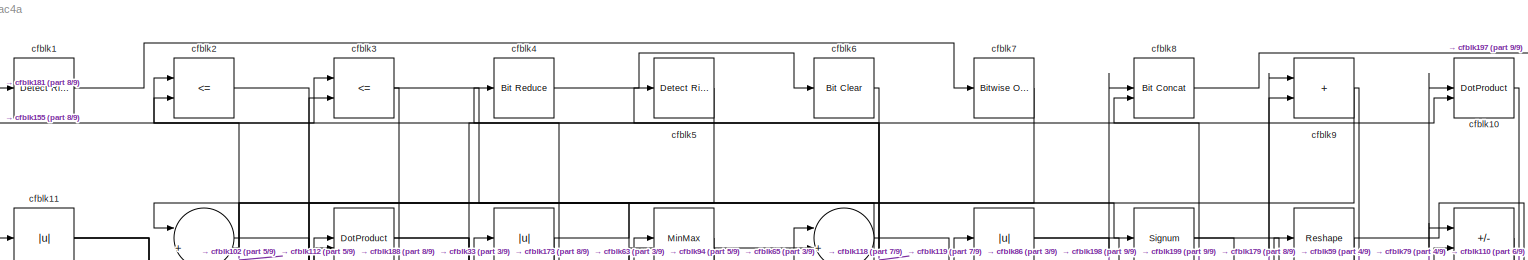
[diagram: root canvas - part 1/9, full width, top band]
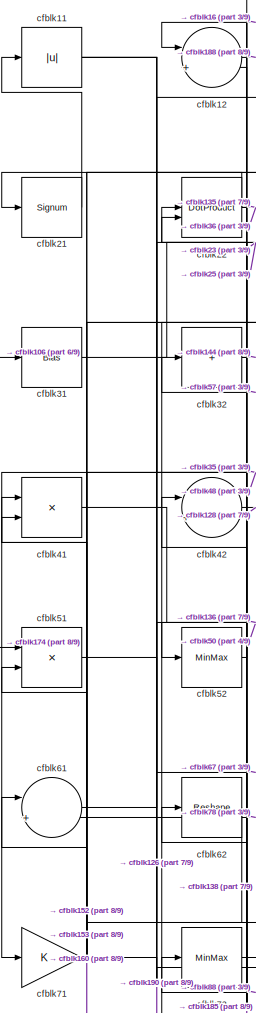
[diagram: root canvas - part 2/9, top left region]
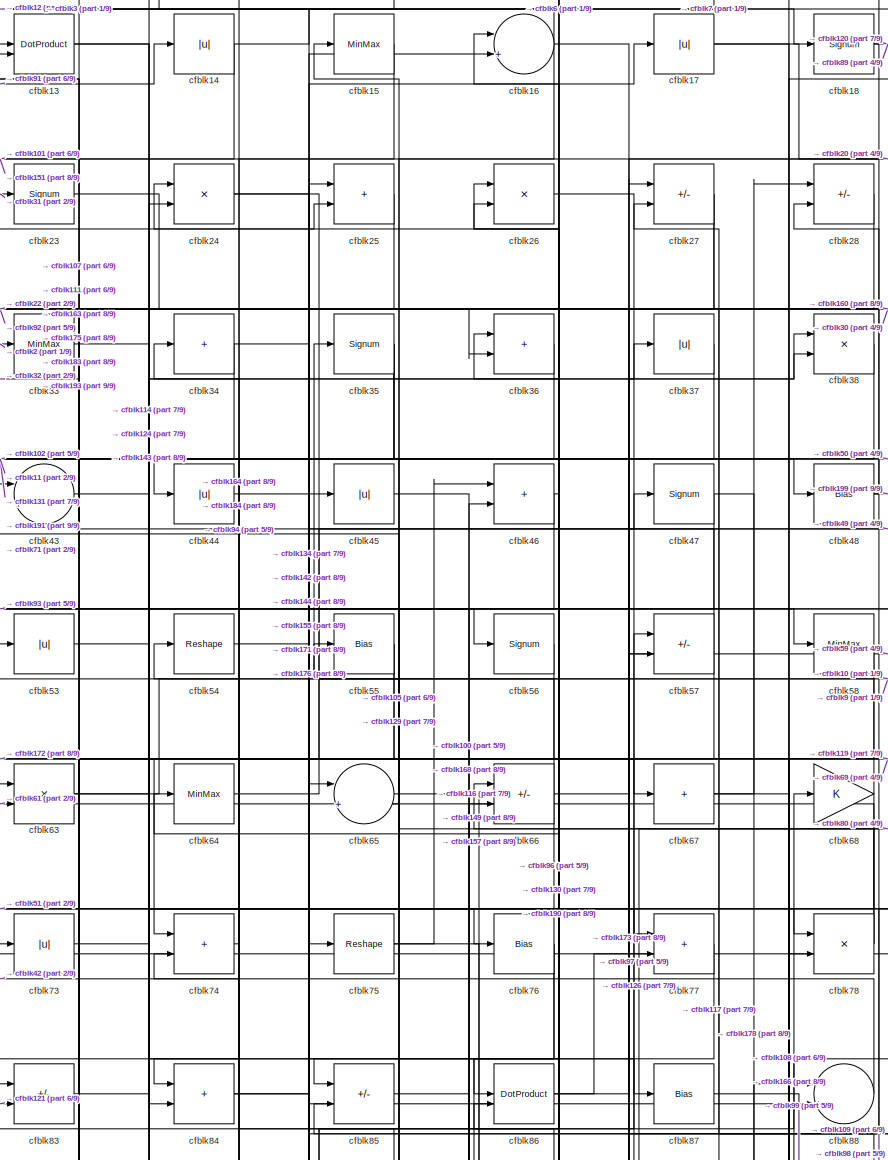
[diagram: root canvas - part 3/9, top center region]
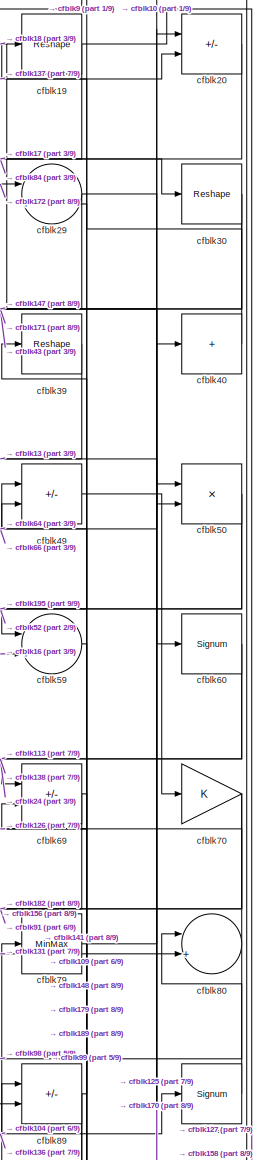
[diagram: root canvas - part 4/9, top right region]
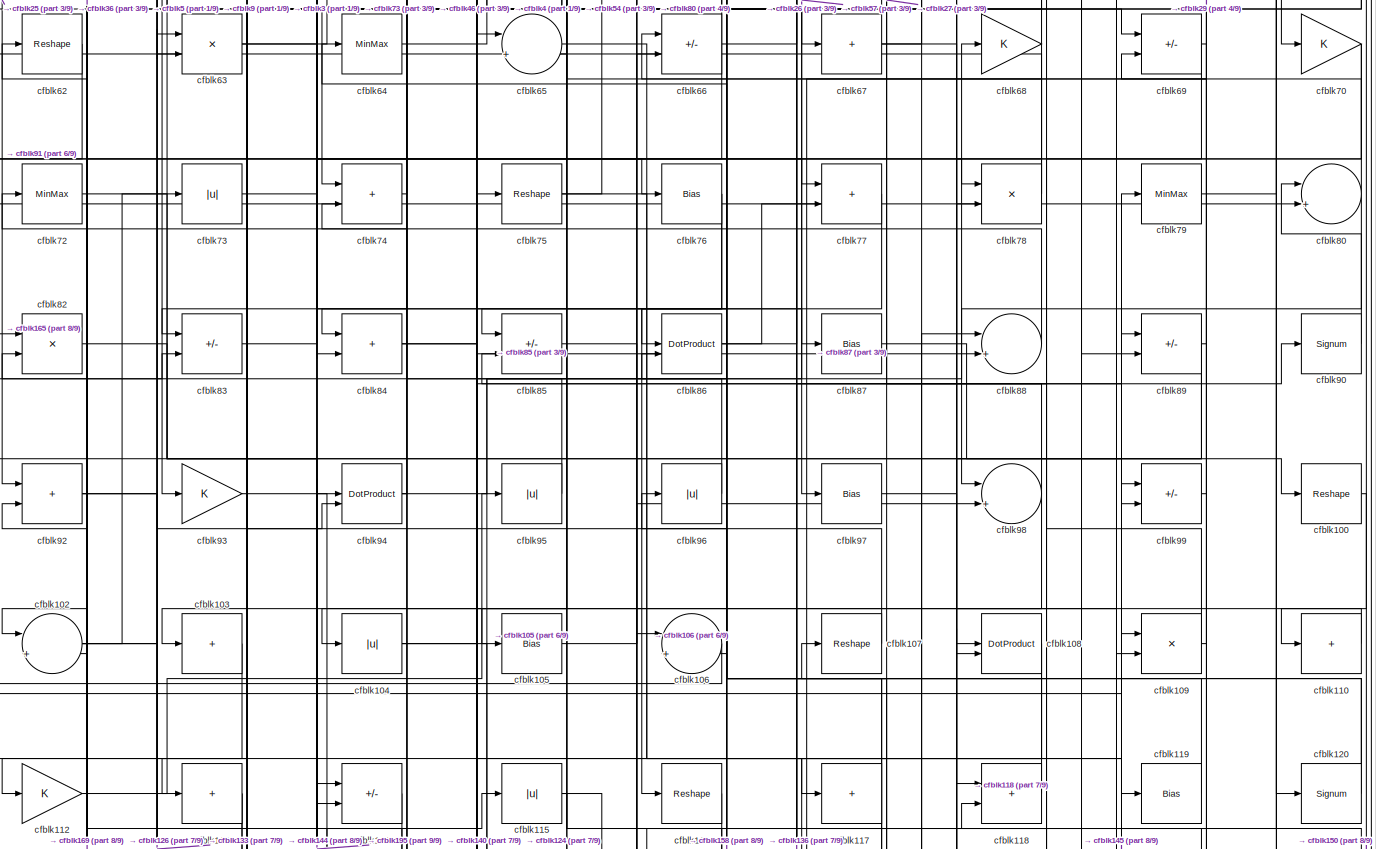
[diagram: root canvas - part 5/9, full width, middle band]
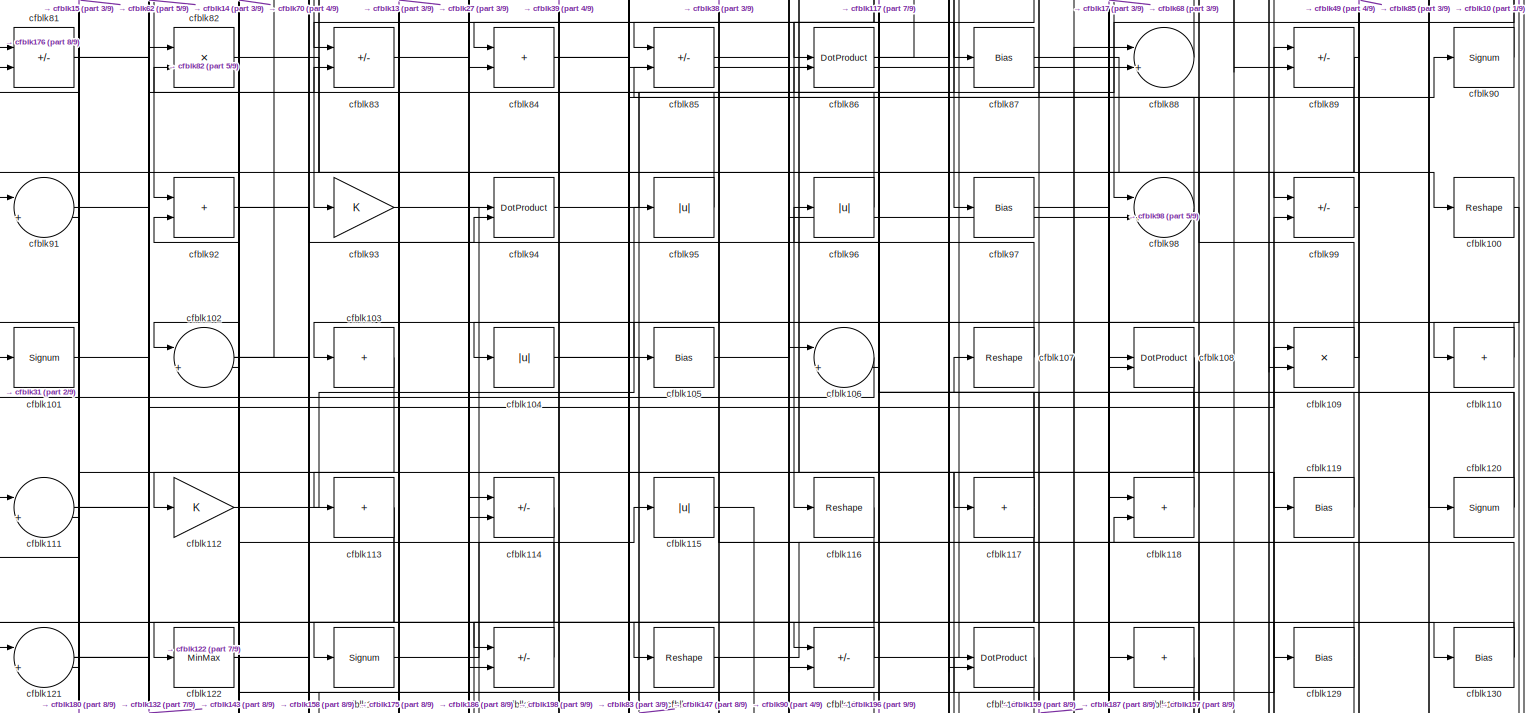
[diagram: root canvas - part 6/9, full width, middle band]
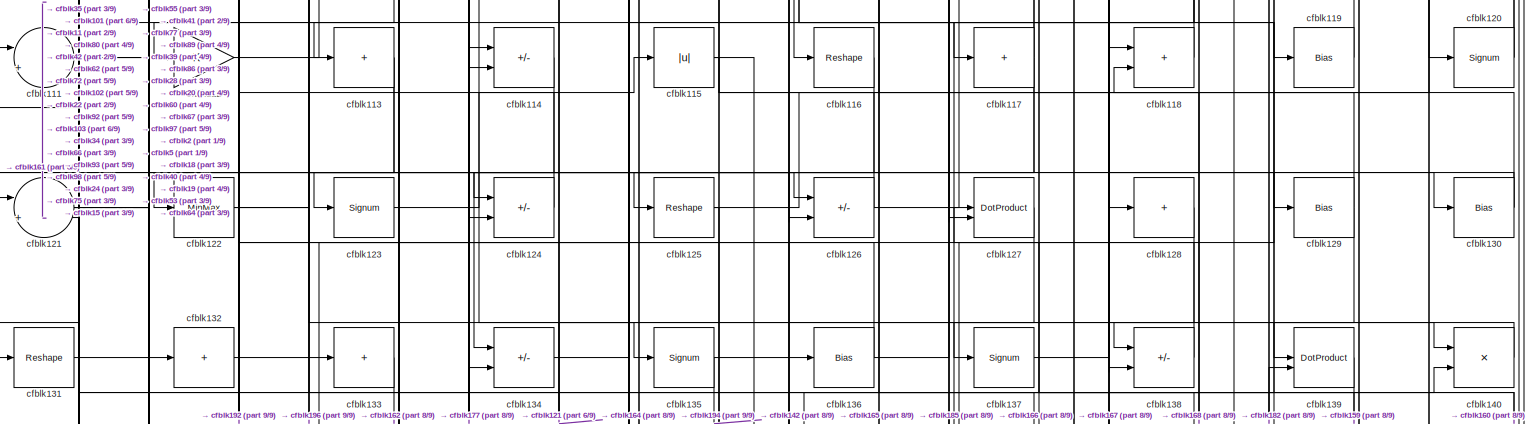
[diagram: root canvas - part 7/9, full width, middle band]
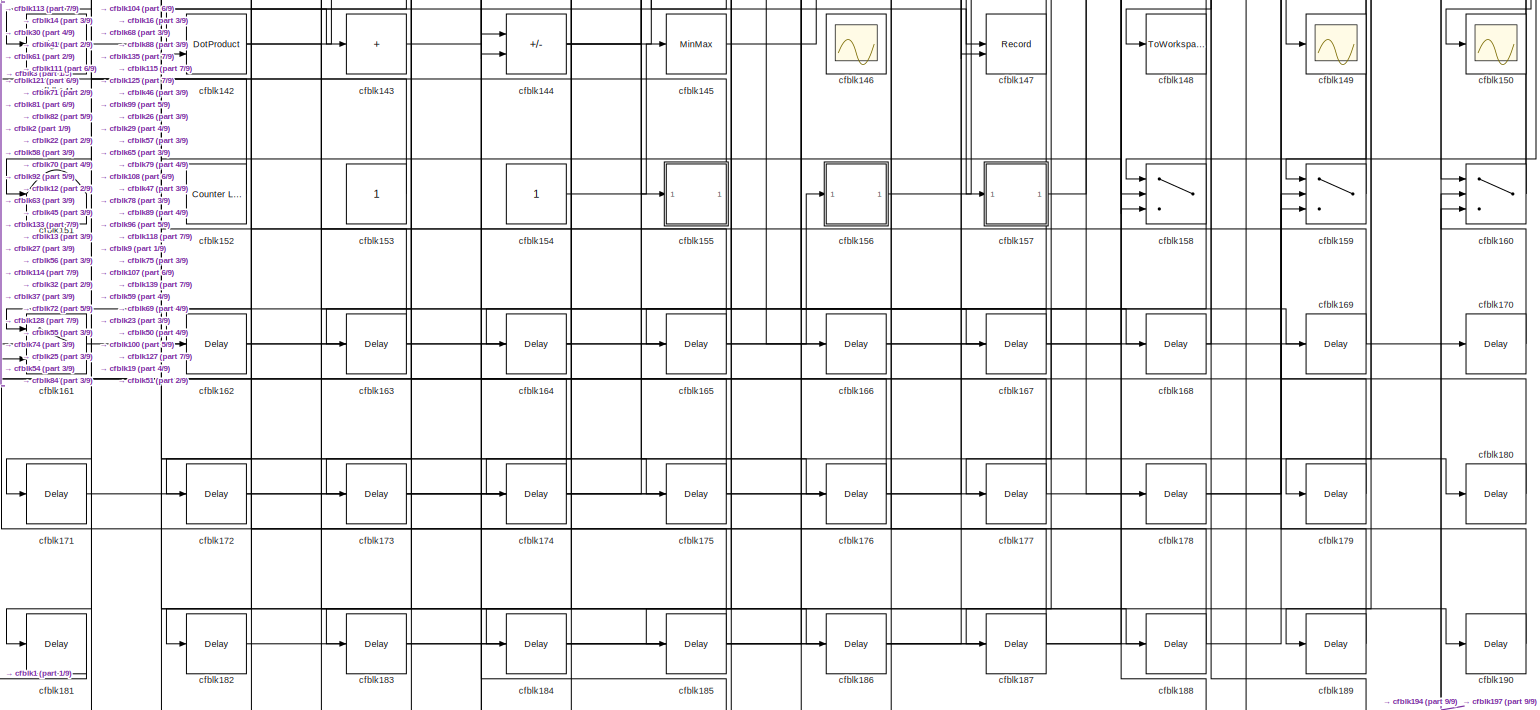
[diagram: root canvas - part 8/9, full width, bottom band]
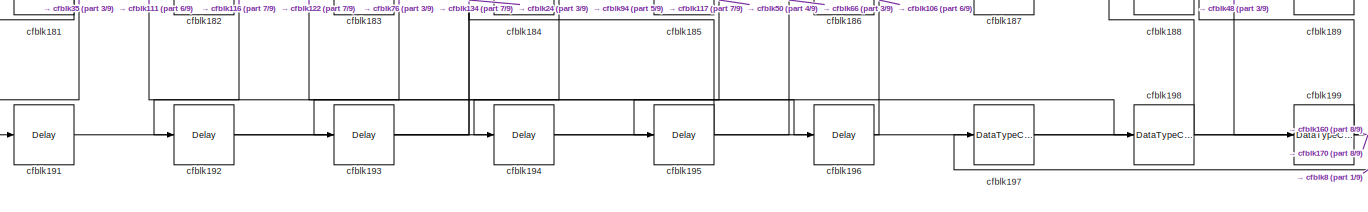
[diagram: root canvas - part 9/9, full width, bottom band]
MODEL slx_ca56946bac4a
KIND model
CONFIG AbsTol = auto
CONFIG EnableMultiTasking = off
CONFIG FixedStep = auto
CONFIG MaxStep = auto
CONFIG MinStep = auto
CONFIG RelTol = 1e-3
CONFIG SampleTimeConstraint = Unconstrained
CONFIG SolverName = VariableStepAuto
CONFIG StartTime = 0.0
CONFIG StopTime = 10.0
BLOCK [Reference] cfblk1  REF=hdlsllib/Logic and Bit
Operations/Detect Rise
Positive
  SourceBlock = hdlsllib/Logic and Bit\nOperations/Detect Rise\nPositive
  SourceType = Detect Rise Positive
BLOCK [DotProduct] cfblk10
  OutDataTypeStr = Inherit: Inherit via internal rule
BLOCK [Reshape] cfblk100
BLOCK [Signum] cfblk101
BLOCK [Sum] cfblk102
  Inputs = |++
BLOCK [Sum] cfblk103
  IconShape = rectangular
  Inputs = +
BLOCK [Abs] cfblk104
  SaturateOnIntegerOverflow = off
BLOCK [Bias] cfblk105
  Bias = 0.0
  SaturateOnIntegerOverflow = off
BLOCK [Sum] cfblk106
  Inputs = |++
BLOCK [Reshape] cfblk107
BLOCK [DotProduct] cfblk108
  OutDataTypeStr = Inherit: Inherit via internal rule
BLOCK [Product] cfblk109
  Inputs = */
  RndMeth = Zero
  SaturateOnIntegerOverflow = on
BLOCK [Abs] cfblk11
  SaturateOnIntegerOverflow = off
BLOCK [Sum] cfblk110
  IconShape = rectangular
  Inputs = +
BLOCK [Sum] cfblk111
  Inputs = |++
BLOCK [Gain] cfblk112
BLOCK [Sum] cfblk113
  IconShape = rectangular
  Inputs = +
BLOCK [Sum] cfblk114
  IconShape = rectangular
  Inputs = +-
BLOCK [Abs] cfblk115
  SaturateOnIntegerOverflow = off
BLOCK [Reshape] cfblk116
BLOCK [Sum] cfblk117
  IconShape = rectangular
  Inputs = +
BLOCK [Sum] cfblk118
  IconShape = rectangular
BLOCK [Bias] cfblk119
  Bias = 0.0
  SaturateOnIntegerOverflow = off
BLOCK [Sum] cfblk12
  Inputs = |++
BLOCK [Signum] cfblk120
BLOCK [Sum] cfblk121
  Inputs = |++
BLOCK [MinMax] cfblk122
BLOCK [Signum] cfblk123
BLOCK [Sum] cfblk124
  IconShape = rectangular
  Inputs = +-
BLOCK [Reshape] cfblk125
BLOCK [Sum] cfblk126
  IconShape = rectangular
  Inputs = +-
BLOCK [DotProduct] cfblk127
  OutDataTypeStr = Inherit: Inherit via internal rule
BLOCK [Sum] cfblk128
  IconShape = rectangular
  Inputs = +
BLOCK [Bias] cfblk129
  Bias = 0.0
  SaturateOnIntegerOverflow = off
BLOCK [DotProduct] cfblk13
  OutDataTypeStr = Inherit: Inherit via internal rule
BLOCK [Bias] cfblk130
  Bias = 0.0
  SaturateOnIntegerOverflow = off
BLOCK [Reshape] cfblk131
BLOCK [Sum] cfblk132
  IconShape = rectangular
  Inputs = +
BLOCK [Sum] cfblk133
  IconShape = rectangular
  Inputs = +
BLOCK [Sum] cfblk134
  IconShape = rectangular
  Inputs = +-
BLOCK [Signum] cfblk135
BLOCK [Bias] cfblk136
  Bias = 0.0
  SaturateOnIntegerOverflow = off
BLOCK [Signum] cfblk137
BLOCK [Sum] cfblk138
  IconShape = rectangular
  Inputs = +-
BLOCK [DotProduct] cfblk139
  OutDataTypeStr = Inherit: Inherit via internal rule
BLOCK [Abs] cfblk14
  SaturateOnIntegerOverflow = off
BLOCK [Product] cfblk140
  Inputs = */
  RndMeth = Zero
  SaturateOnIntegerOverflow = on
BLOCK [Signum] cfblk141
BLOCK [DotProduct] cfblk142
  OutDataTypeStr = Inherit: Inherit via internal rule
BLOCK [Sum] cfblk143
  IconShape = rectangular
  Inputs = +
BLOCK [Sum] cfblk144
  IconShape = rectangular
  Inputs = +-
BLOCK [MinMax] cfblk145
BLOCK [Scope] cfblk146
  Floating = on
  NumInputPorts = 1
  ScopeSpecificationString = Simulink.scopes.TimeScopeBlockCfg('CurrentConfiguration', extmgr.ConfigurationSet(extmgr.Configuration('Core','General UI',true,'FigureColor',[0.156862745098039 0.156862745098039 0.156862745098039]),extmgr.Configuration('Core','Source UI',true),extmgr.Configuration('Sources','WiredSimulink',true,'DataLoggingVariableName','ScopeData1','DataLoggingSaveFormat','StructureWithTime','DataLoggingLimitDat...<+2713ch>
BLOCK [Record] cfblk147
  CompatibilityTag = XY
  FileSettingsInternal = {"entries":[{"content":{"excelSettings":{"content":{},"type":"Streamout.ExcelSettings"}},"type":"Streamout.FileSettingStorage","uuid":""}],"packageUris":["http:\/\/schema.mathworks.com\/mf0\/streamout_blocks\/R2020a"],"version":"1.0"}
  Layout = [1 1]
  SignalsInternal = {"entries":[{"content":{"signals":[{"content":{"blockPath":[],"dimensions":[1],"domain":"","lineColor":"#a2142f","plots":[1],"port":1,"signalID":2869,"signalName":"XY Graph:1"},"type":"RecordBlkView.Signal","uuid":""},{"content":{"blockPath":[],"dimensions":[1],"domain":"","lineColor":"#139fff","plots":[1],"port":2,"signalID":2872,"signalName":"XY Graph:2"},"type":"RecordBlkView.Signal","uuid":""}...<+146ch>
  VisualizationBindings = {"xyplotplugin":{"info":[{"series":[{"bindingParametersList":[{"parameter":"X-Axis","signalID":2869,"signalName":"XY Graph:1"},{"parameter":"Y-Axis","signalID":2872,"signalName":"XY Graph:2"}],"seriesID":21956}],"subplotID":1}]}}
  st = -1
BLOCK [ToWorkspace] cfblk148
  MaxDataPoints = inf
  SampleTime = -1
  SaveFormat = Timeseries
  VariableName = simout
BLOCK [Scope] cfblk149
  Floating = off
  NumInputPorts = 1
  ScopeSpecificationString = Simulink.scopes.TimeScopeBlockCfg('CurrentConfiguration', extmgr.ConfigurationSet(extmgr.Configuration('Core','General UI',true),extmgr.Configuration('Core','Source UI',true),extmgr.Configuration('Sources','WiredSimulink',true,'DataLoggingVariableName','ScopeData2','DataLoggingSaveFormat','Array','DataLoggingLimitDataPoints',true,'DataLoggingDecimation','1'),extmgr.Configuration('Visuals','Time Do...<+868ch>
BLOCK [MinMax] cfblk15
BLOCK [Scope] cfblk150
  Floating = off
  NumInputPorts = 1
  ScopeSpecificationString = Simulink.scopes.TimeScopeBlockCfg('CurrentConfiguration', extmgr.ConfigurationSet(extmgr.Configuration('Core','General UI',true),extmgr.Configuration('Core','Source UI',true),extmgr.Configuration('Sources','WiredSimulink',true,'DataLoggingVariableName','ScopeData2','DataLoggingSaveFormat','Array','DataLoggingLimitDataPoints',true,'DataLoggingDecimation','1'),extmgr.Configuration('Visuals','Time Do...<+868ch>
BLOCK [Terminator] cfblk151
BLOCK [Reference] cfblk152  REF=hdlsllib/Sources/Counter
Limited
  SourceBlock = hdlsllib/Sources/Counter\nLimited
  SourceType = Counter Limited
BLOCK [Constant] cfblk153
  SampleTime = -1
BLOCK [Constant] cfblk154
  SampleTime = -1
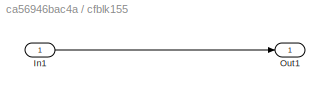
BLOCK [SubSystem] cfblk155
  LibrarySourceBlock = hdlsllib/Ports &\nSubsystems/Subsystem
BLOCK [Inport] cfblk155/In1
BLOCK [Outport] cfblk155/Out1
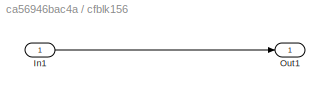
BLOCK [SubSystem] cfblk156
  LibrarySourceBlock = hdlsllib/Ports &\nSubsystems/Subsystem
BLOCK [Inport] cfblk156/In1
BLOCK [Outport] cfblk156/Out1
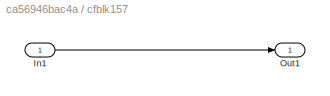
BLOCK [SubSystem] cfblk157
  LibrarySourceBlock = hdlsllib/Ports &\nSubsystems/Subsystem
BLOCK [Inport] cfblk157/In1
BLOCK [Outport] cfblk157/Out1
BLOCK [Switch] cfblk158
  InputSameDT = off
  SaturateOnIntegerOverflow = off
BLOCK [Switch] cfblk159
  InputSameDT = off
  SaturateOnIntegerOverflow = off
BLOCK [Sum] cfblk16
  Inputs = |++
BLOCK [Switch] cfblk160
  InputSameDT = off
  SaturateOnIntegerOverflow = off
BLOCK [Switch] cfblk161
  InputSameDT = off
  SaturateOnIntegerOverflow = off
BLOCK [Delay] cfblk162
  InputPortMap = u0
  SampleTime = 1
BLOCK [Delay] cfblk163
  InputPortMap = u0
  SampleTime = 1
BLOCK [Delay] cfblk164
  InputPortMap = u0
  SampleTime = 1
BLOCK [Delay] cfblk165
  InputPortMap = u0
  SampleTime = 1
BLOCK [Delay] cfblk166
  InputPortMap = u0
  SampleTime = 1
BLOCK [Delay] cfblk167
  InputPortMap = u0
  SampleTime = 1
BLOCK [Delay] cfblk168
  InputPortMap = u0
  SampleTime = 1
BLOCK [Delay] cfblk169
  InputPortMap = u0
  SampleTime = 1
BLOCK [Abs] cfblk17
  SaturateOnIntegerOverflow = off
BLOCK [Delay] cfblk170
  InputPortMap = u0
  SampleTime = 1
BLOCK [Delay] cfblk171
  InputPortMap = u0
  SampleTime = 1
BLOCK [Delay] cfblk172
  InputPortMap = u0
  SampleTime = 1
BLOCK [Delay] cfblk173
  InputPortMap = u0
  SampleTime = 1
BLOCK [Delay] cfblk174
  InputPortMap = u0
  SampleTime = 1
BLOCK [Delay] cfblk175
  InputPortMap = u0
  SampleTime = 1
BLOCK [Delay] cfblk176
  InputPortMap = u0
  SampleTime = 1
BLOCK [Delay] cfblk177
  InputPortMap = u0
  SampleTime = 1
BLOCK [Delay] cfblk178
  InputPortMap = u0
  SampleTime = 1
BLOCK [Delay] cfblk179
  InputPortMap = u0
  SampleTime = 1
BLOCK [Signum] cfblk18
BLOCK [Delay] cfblk180
  InputPortMap = u0
  SampleTime = 1
BLOCK [Delay] cfblk181
  InputPortMap = u0
  SampleTime = 1
BLOCK [Delay] cfblk182
  InputPortMap = u0
  SampleTime = 1
BLOCK [Delay] cfblk183
  InputPortMap = u0
  SampleTime = 1
BLOCK [Delay] cfblk184
  InputPortMap = u0
  SampleTime = 1
BLOCK [Delay] cfblk185
  InputPortMap = u0
  SampleTime = 1
BLOCK [Delay] cfblk186
  InputPortMap = u0
  SampleTime = 1
BLOCK [Delay] cfblk187
  InputPortMap = u0
  SampleTime = 1
BLOCK [Delay] cfblk188
  InputPortMap = u0
  SampleTime = 1
BLOCK [Delay] cfblk189
  InputPortMap = u0
  SampleTime = 1
BLOCK [Reshape] cfblk19
BLOCK [Delay] cfblk190
  InputPortMap = u0
  SampleTime = 1
BLOCK [Delay] cfblk191
  InputPortMap = u0
  SampleTime = 1
BLOCK [Delay] cfblk192
  InputPortMap = u0
  SampleTime = 1
BLOCK [Delay] cfblk193
  InputPortMap = u0
  SampleTime = 1
BLOCK [Delay] cfblk194
  InputPortMap = u0
  SampleTime = 1
BLOCK [Delay] cfblk195
  InputPortMap = u0
  SampleTime = 1
BLOCK [Delay] cfblk196
  InputPortMap = u0
  SampleTime = 1
BLOCK [DataTypeConversion] cfblk197
  OutDataTypeStr = uint8
  RndMeth = Floor
  SaturateOnIntegerOverflow = off
BLOCK [DataTypeConversion] cfblk198
  OutDataTypeStr = uint8
  RndMeth = Floor
  SaturateOnIntegerOverflow = off
BLOCK [DataTypeConversion] cfblk199
  OutDataTypeStr = uint8
  RndMeth = Floor
  SaturateOnIntegerOverflow = off
BLOCK [RelationalOperator] cfblk2
  InputSameDT = off
  Operator = <=
  OutDataTypeStr = boolean
BLOCK [Sum] cfblk20
  IconShape = rectangular
  Inputs = +-
BLOCK [Signum] cfblk21
BLOCK [DotProduct] cfblk22
  OutDataTypeStr = Inherit: Inherit via internal rule
BLOCK [Signum] cfblk23
BLOCK [Product] cfblk24
  Inputs = */
  RndMeth = Zero
  SaturateOnIntegerOverflow = on
BLOCK [Sum] cfblk25
  IconShape = rectangular
BLOCK [Product] cfblk26
  Inputs = */
  RndMeth = Zero
  SaturateOnIntegerOverflow = on
BLOCK [Sum] cfblk27
  IconShape = rectangular
  Inputs = +-
BLOCK [Sum] cfblk28
  IconShape = rectangular
  Inputs = +-
BLOCK [Sum] cfblk29
  Inputs = |++
BLOCK [RelationalOperator] cfblk3
  InputSameDT = off
  Operator = <=
  OutDataTypeStr = boolean
BLOCK [Reshape] cfblk30
BLOCK [Bias] cfblk31
  Bias = 0.0
  SaturateOnIntegerOverflow = off
BLOCK [Sum] cfblk32
  IconShape = rectangular
  Inputs = +
BLOCK [MinMax] cfblk33
BLOCK [Sum] cfblk34
  IconShape = rectangular
  Inputs = +
BLOCK [Signum] cfblk35
BLOCK [Sum] cfblk36
  IconShape = rectangular
BLOCK [Abs] cfblk37
  SaturateOnIntegerOverflow = off
BLOCK [Product] cfblk38
  Inputs = */
  RndMeth = Zero
  SaturateOnIntegerOverflow = on
BLOCK [Reshape] cfblk39
BLOCK [Reference] cfblk4  REF=hdlsllib/Logic and Bit
Operations/Bit Reduce
  SourceBlock = hdlsllib/Logic and Bit\nOperations/Bit Reduce
  SourceType = Bit Reduce
BLOCK [Sum] cfblk40
  IconShape = rectangular
  Inputs = +
BLOCK [Product] cfblk41
  Inputs = */
  RndMeth = Zero
  SaturateOnIntegerOverflow = on
BLOCK [Sum] cfblk42
  Inputs = |++
BLOCK [Sum] cfblk43
  Inputs = |++
BLOCK [Abs] cfblk44
  SaturateOnIntegerOverflow = off
BLOCK [Abs] cfblk45
  SaturateOnIntegerOverflow = off
BLOCK [Sum] cfblk46
  IconShape = rectangular
BLOCK [Signum] cfblk47
BLOCK [Bias] cfblk48
  Bias = 0.0
  SaturateOnIntegerOverflow = off
BLOCK [Sum] cfblk49
  IconShape = rectangular
  Inputs = +-
BLOCK [Reference] cfblk5  REF=hdlsllib/Logic and Bit
Operations/Detect Rise
Positive
  SourceBlock = hdlsllib/Logic and Bit\nOperations/Detect Rise\nPositive
  SourceType = Detect Rise Positive
BLOCK [Product] cfblk50
  Inputs = */
  RndMeth = Zero
  SaturateOnIntegerOverflow = on
BLOCK [Product] cfblk51
  Inputs = */
  RndMeth = Zero
  SaturateOnIntegerOverflow = on
BLOCK [MinMax] cfblk52
BLOCK [Abs] cfblk53
  SaturateOnIntegerOverflow = off
BLOCK [Reshape] cfblk54
BLOCK [Bias] cfblk55
  Bias = 0.0
  SaturateOnIntegerOverflow = off
BLOCK [Signum] cfblk56
BLOCK [Sum] cfblk57
  IconShape = rectangular
  Inputs = +-
BLOCK [MinMax] cfblk58
BLOCK [Sum] cfblk59
  Inputs = |++
BLOCK [Reference] cfblk6  REF=simulink/Logic and Bit
Operations/Bit Clear
  LibrarySourceBlock = hdlsllib/Logic and Bit\nOperations/Bit Clear
  SourceBlock = simulink/Logic and Bit\nOperations/Bit Clear
  SourceType = Bit Clear
BLOCK [Signum] cfblk60
BLOCK [Sum] cfblk61
  Inputs = |++
BLOCK [Reshape] cfblk62
BLOCK [Product] cfblk63
  Inputs = */
  RndMeth = Zero
  SaturateOnIntegerOverflow = on
BLOCK [MinMax] cfblk64
BLOCK [Sum] cfblk65
  Inputs = |++
BLOCK [Sum] cfblk66
  IconShape = rectangular
  Inputs = +-
BLOCK [Sum] cfblk67
  IconShape = rectangular
  Inputs = +
BLOCK [Gain] cfblk68
BLOCK [Sum] cfblk69
  IconShape = rectangular
  Inputs = +-
BLOCK [Reference] cfblk7  REF=simulink/Logic and Bit
Operations/Bitwise
Operator
  LibrarySourceBlock = hdlsllib/Logic and Bit\nOperations/Bitwise\nOperator
  SourceBlock = simulink/Logic and Bit\nOperations/Bitwise\nOperator
  SourceType = Bitwise Operator
BLOCK [Gain] cfblk70
BLOCK [Gain] cfblk71
BLOCK [MinMax] cfblk72
BLOCK [Abs] cfblk73
  SaturateOnIntegerOverflow = off
BLOCK [Sum] cfblk74
  IconShape = rectangular
BLOCK [Reshape] cfblk75
BLOCK [Bias] cfblk76
  Bias = 0.0
  SaturateOnIntegerOverflow = off
BLOCK [Sum] cfblk77
  IconShape = rectangular
BLOCK [Product] cfblk78
  Inputs = */
  RndMeth = Zero
  SaturateOnIntegerOverflow = on
BLOCK [MinMax] cfblk79
BLOCK [Reference] cfblk8  REF=hdlsllib/Logic and Bit
Operations/Bit Concat
  SourceBlock = hdlsllib/Logic and Bit\nOperations/Bit Concat
  SourceType = Bit Concat
BLOCK [Sum] cfblk80
  Inputs = |++
BLOCK [Sum] cfblk81
  IconShape = rectangular
  Inputs = +-
BLOCK [Product] cfblk82
  Inputs = */
  RndMeth = Zero
  SaturateOnIntegerOverflow = on
BLOCK [Sum] cfblk83
  IconShape = rectangular
  Inputs = +-
BLOCK [Sum] cfblk84
  IconShape = rectangular
BLOCK [Sum] cfblk85
  IconShape = rectangular
  Inputs = +-
BLOCK [DotProduct] cfblk86
  OutDataTypeStr = Inherit: Inherit via internal rule
BLOCK [Bias] cfblk87
  Bias = 0.0
  SaturateOnIntegerOverflow = off
BLOCK [Sum] cfblk88
  Inputs = |++
BLOCK [Sum] cfblk89
  IconShape = rectangular
  Inputs = +-
BLOCK [Sum] cfblk9
  IconShape = rectangular
BLOCK [Signum] cfblk90
BLOCK [Sum] cfblk91
  Inputs = |++
BLOCK [Sum] cfblk92
  IconShape = rectangular
BLOCK [Gain] cfblk93
BLOCK [DotProduct] cfblk94
  OutDataTypeStr = Inherit: Inherit via internal rule
BLOCK [Abs] cfblk95
  SaturateOnIntegerOverflow = off
BLOCK [Abs] cfblk96
  SaturateOnIntegerOverflow = off
BLOCK [Bias] cfblk97
  Bias = 0.0
  SaturateOnIntegerOverflow = off
BLOCK [Sum] cfblk98
  Inputs = |++
BLOCK [Sum] cfblk99
  IconShape = rectangular
  Inputs = +-
LINE cfblk100:1 -> cfblk150:1
LINE cfblk101:1 -> cfblk132:1
NET cfblk102:1 -> cfblk126:2, cfblk3:2, cfblk73:1
LINE cfblk103:1 -> cfblk122:1
NET cfblk104:1 -> cfblk147:1, cfblk90:1
LINE cfblk105:1 -> cfblk98:2
LINE cfblk106:1 -> cfblk31:1
LINE cfblk107:1 -> cfblk13:1
NET cfblk108:1 -> cfblk121:1, cfblk187:1
NET cfblk109:1 -> cfblk49:1, cfblk85:2
LINE cfblk10:1 -> cfblk110:1
LINE cfblk110:1 -> cfblk103:1
NET cfblk111:1 -> cfblk143:1, cfblk198:1
LINE cfblk112:1 -> cfblk95:1
NET cfblk113:1 -> cfblk123:1, cfblk161:3
LINE cfblk114:1 -> cfblk134:1
NET cfblk115:1 -> cfblk165:1, cfblk166:1
LINE cfblk116:1 -> cfblk192:1
NET cfblk117:1 -> cfblk121:2, cfblk194:1, cfblk24:1, cfblk86:2
LINE cfblk118:1 -> cfblk2:1
LINE cfblk119:1 -> cfblk5:1
NET cfblk11:1 -> cfblk126:1, cfblk48:1, cfblk67:1
NET cfblk120:1 -> cfblk53:1, cfblk64:1
NET cfblk121:1 -> cfblk109:1, cfblk186:1, cfblk83:2
NET cfblk122:1 -> cfblk129:1, cfblk196:1
LINE cfblk123:1 -> cfblk115:1
LINE cfblk124:1 -> cfblk62:1
NET cfblk125:1 -> cfblk185:1, cfblk40:1
NET cfblk126:1 -> cfblk39:1, cfblk55:1
LINE cfblk127:1 -> cfblk137:1
LINE cfblk128:1 -> cfblk164:1
NET cfblk129:1 -> cfblk139:1, cfblk15:1
LINE cfblk12:1 -> cfblk188:1
NET cfblk130:1 -> cfblk125:1, cfblk66:1
LINE cfblk131:1 -> cfblk80:2
LINE cfblk132:1 -> cfblk140:2
LINE cfblk133:1 -> cfblk162:1
LINE cfblk134:1 -> cfblk75:1
NET cfblk135:1 -> cfblk142:1, cfblk167:1
NET cfblk136:1 -> cfblk72:1, cfblk89:1
LINE cfblk137:1 -> cfblk20:2
LINE cfblk138:1 -> cfblk42:1
LINE cfblk139:1 -> cfblk159:1
NET cfblk13:1 -> cfblk50:2, cfblk77:1
LINE cfblk140:1 -> cfblk138:1
NET cfblk141:1 -> cfblk180:1, cfblk181:1
NET cfblk142:1 -> cfblk169:1, cfblk45:1
LINE cfblk143:1 -> cfblk37:1
NET cfblk144:1 -> cfblk16:2, cfblk68:1, cfblk88:2
LINE cfblk145:1 -> cfblk99:2
NET cfblk14:1 -> cfblk151:1, cfblk18:1
LINE cfblk152:1 -> cfblk61:1
LINE cfblk153:1 -> cfblk41:2
LINE cfblk154:1 -> cfblk145:1
LINE cfblk155/In1:1 -> cfblk155/Out1:1
LINE cfblk155:1 -> cfblk3:1
LINE cfblk156/In1:1 -> cfblk156/Out1:1
LINE cfblk156:1 -> cfblk79:1
LINE cfblk157/In1:1 -> cfblk157/Out1:1
NET cfblk157:1 -> cfblk174:1, cfblk81:2, cfblk88:1
NET cfblk158:1 -> cfblk177:1, cfblk96:1
LINE cfblk159:1 -> cfblk107:1
LINE cfblk15:1 -> cfblk101:1
NET cfblk160:1 -> cfblk127:1, cfblk51:2
LINE cfblk161:1 -> cfblk156:1
LINE cfblk162:1 -> cfblk160:2
LINE cfblk163:1 -> cfblk63:1
LINE cfblk164:1 -> cfblk74:2
LINE cfblk165:1 -> cfblk82:1
LINE cfblk166:1 -> cfblk78:2
LINE cfblk167:1 -> cfblk161:1
LINE cfblk168:1 -> cfblk118:2
LINE cfblk169:1 -> cfblk92:2
NET cfblk16:1 -> cfblk12:1, cfblk59:2, cfblk65:2
LINE cfblk170:1 -> cfblk50:1
LINE cfblk171:1 -> cfblk25:1
LINE cfblk172:1 -> cfblk29:1
LINE cfblk173:1 -> cfblk27:1
LINE cfblk174:1 -> cfblk51:1
LINE cfblk175:1 -> cfblk13:2
LINE cfblk176:1 -> cfblk81:1
LINE cfblk177:1 -> cfblk114:1
LINE cfblk178:1 -> cfblk159:3
LINE cfblk179:1 -> cfblk9:1
NET cfblk17:1 -> cfblk109:2, cfblk30:1
LINE cfblk180:1 -> cfblk111:1
LINE cfblk181:1 -> cfblk1:1
LINE cfblk182:1 -> cfblk139:2
LINE cfblk183:1 -> cfblk46:2
LINE cfblk184:1 -> cfblk57:2
LINE cfblk185:1 -> cfblk22:2
LINE cfblk186:1 -> cfblk108:1
LINE cfblk187:1 -> cfblk161:2
LINE cfblk188:1 -> cfblk2:2
LINE cfblk189:1 -> cfblk159:2
NET cfblk18:1 -> cfblk120:1, cfblk89:2
LINE cfblk190:1 -> cfblk26:2
LINE cfblk191:1 -> cfblk66:2
LINE cfblk192:1 -> cfblk134:2
LINE cfblk193:1 -> cfblk24:2
LINE cfblk194:1 -> cfblk160:3
LINE cfblk195:1 -> cfblk94:1
LINE cfblk196:1 -> cfblk106:2
LINE cfblk197:1 -> cfblk170:1
LINE cfblk198:1 -> cfblk8:1
LINE cfblk199:1 -> cfblk8:2
NET cfblk19:1 -> cfblk127:2, cfblk158:1
LINE cfblk1:1 -> cfblk7:1
LINE cfblk20:1 -> cfblk84:1
LINE cfblk21:1 -> cfblk11:1
NET cfblk22:1 -> cfblk135:1, cfblk21:1, cfblk36:2
LINE cfblk23:1 -> cfblk160:1
NET cfblk24:1 -> cfblk119:1, cfblk69:1
LINE cfblk25:1 -> cfblk92:1
LINE cfblk26:1 -> cfblk97:1
NET cfblk27:1 -> cfblk111:2, cfblk183:1
LINE cfblk28:1 -> cfblk117:1
NET cfblk29:1 -> cfblk147:2, cfblk60:1
LINE cfblk2:1 -> cfblk33:1
NET cfblk30:1 -> cfblk171:1, cfblk43:2
LINE cfblk31:1 -> cfblk23:1
NET cfblk32:1 -> cfblk12:2, cfblk144:2
LINE cfblk33:1 -> cfblk87:1
NET cfblk34:1 -> cfblk114:2, cfblk56:1
NET cfblk35:1 -> cfblk131:1, cfblk191:1, cfblk71:1
LINE cfblk36:1 -> cfblk102:1
LINE cfblk37:1 -> cfblk44:1
LINE cfblk38:1 -> cfblk105:1
LINE cfblk39:1 -> cfblk104:1
NET cfblk3:1 -> cfblk173:1, cfblk65:1
LINE cfblk40:1 -> cfblk19:1
LINE cfblk41:1 -> cfblk136:1
LINE cfblk42:1 -> cfblk128:1
LINE cfblk43:1 -> cfblk58:1
LINE cfblk44:1 -> cfblk17:1
LINE cfblk45:1 -> cfblk168:1
NET cfblk46:1 -> cfblk26:1, cfblk93:1
NET cfblk47:1 -> cfblk142:2, cfblk178:1
NET cfblk48:1 -> cfblk199:1, cfblk28:2
LINE cfblk49:1 -> cfblk70:1
LINE cfblk4:1 -> cfblk6:1
NET cfblk50:1 -> cfblk195:1, cfblk52:1
LINE cfblk51:1 -> cfblk78:1
LINE cfblk52:1 -> cfblk22:1
LINE cfblk53:1 -> cfblk84:2
LINE cfblk54:1 -> cfblk176:1
NET cfblk55:1 -> cfblk184:1, cfblk83:1
LINE cfblk56:1 -> cfblk163:1
NET cfblk57:1 -> cfblk32:1, cfblk74:1
LINE cfblk58:1 -> cfblk172:1
LINE cfblk59:1 -> cfblk189:1
LINE cfblk5:1 -> cfblk102:2
NET cfblk60:1 -> cfblk113:1, cfblk138:2
LINE cfblk61:1 -> cfblk25:2
LINE cfblk62:1 -> cfblk91:1
NET cfblk63:1 -> cfblk10:2, cfblk9:2
LINE cfblk64:1 -> cfblk20:1
LINE cfblk65:1 -> cfblk157:1
NET cfblk66:1 -> cfblk124:2, cfblk35:1, cfblk49:2
NET cfblk67:1 -> cfblk130:1, cfblk28:1
NET cfblk68:1 -> cfblk108:2, cfblk16:1
NET cfblk69:1 -> cfblk148:1, cfblk179:1
LINE cfblk6:1 -> cfblk86:1
NET cfblk70:1 -> cfblk182:1, cfblk91:2
NET cfblk71:1 -> cfblk190:1, cfblk41:1
LINE cfblk72:1 -> cfblk144:1
LINE cfblk73:1 -> cfblk76:1
LINE cfblk74:1 -> cfblk34:1
NET cfblk75:1 -> cfblk149:1, cfblk46:1
NET cfblk76:1 -> cfblk193:1, cfblk85:1
LINE cfblk77:1 -> cfblk116:1
NET cfblk78:1 -> cfblk36:1, cfblk61:2
LINE cfblk79:1 -> cfblk10:1
LINE cfblk7:1 -> cfblk63:2
NET cfblk80:1 -> cfblk43:1, cfblk98:1
NET cfblk81:1 -> cfblk158:3, cfblk175:1
LINE cfblk82:1 -> cfblk106:1
LINE cfblk83:1 -> cfblk38:1
NET cfblk84:1 -> cfblk155:1, cfblk47:1
LINE cfblk85:1 -> cfblk100:1
NET cfblk86:1 -> cfblk38:2, cfblk77:2
LINE cfblk87:1 -> cfblk99:1
LINE cfblk88:1 -> cfblk42:2
NET cfblk89:1 -> cfblk141:1, cfblk158:2, cfblk69:2
LINE cfblk8:1 -> cfblk197:1
LINE cfblk90:1 -> cfblk80:1
LINE cfblk91:1 -> cfblk14:1
NET cfblk92:1 -> cfblk133:1, cfblk94:2
LINE cfblk93:1 -> cfblk140:1
NET cfblk94:1 -> cfblk4:1, cfblk57:1
LINE cfblk95:1 -> cfblk82:2
LINE cfblk96:1 -> cfblk54:1
LINE cfblk97:1 -> cfblk118:1
NET cfblk98:1 -> cfblk124:1, cfblk27:2
LINE cfblk99:1 -> cfblk29:2
NET cfblk9:1 -> cfblk112:1, cfblk59:1
note: NET lines group one-source signal fan-out (src -> all destinations, sorted); 1:1 wires keep LINE
